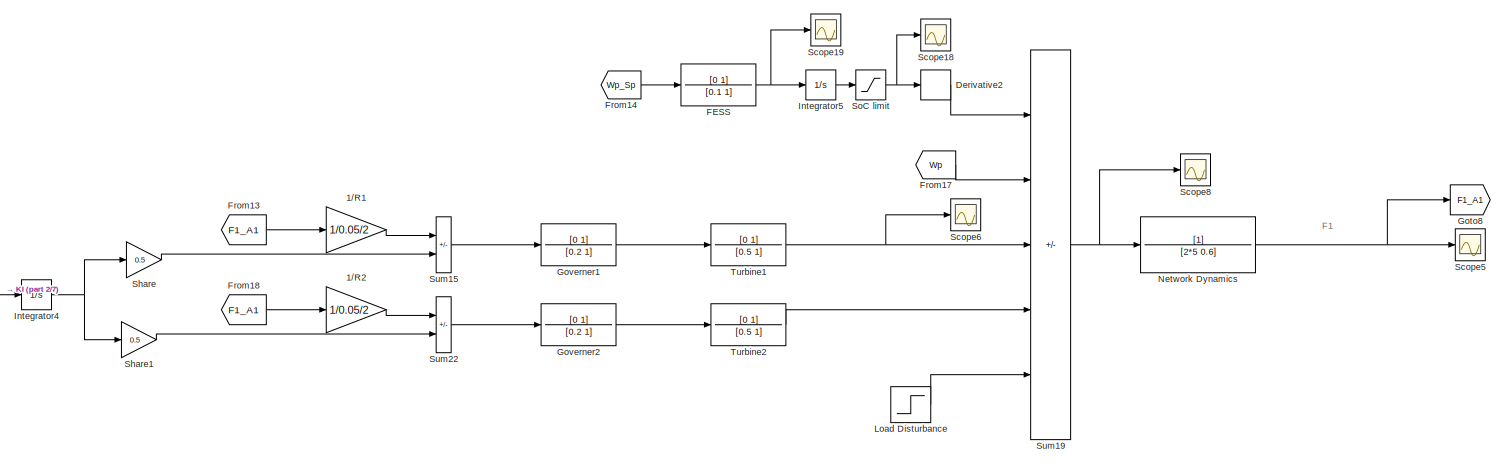
[diagram: root canvas - part 1/7, top center region]
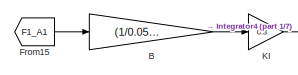
[diagram: root canvas - part 2/7, top left region]
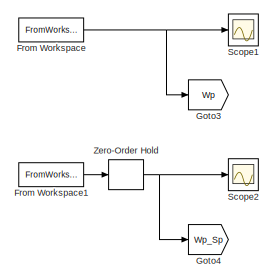
[diagram: root canvas - part 3/7, top left region]
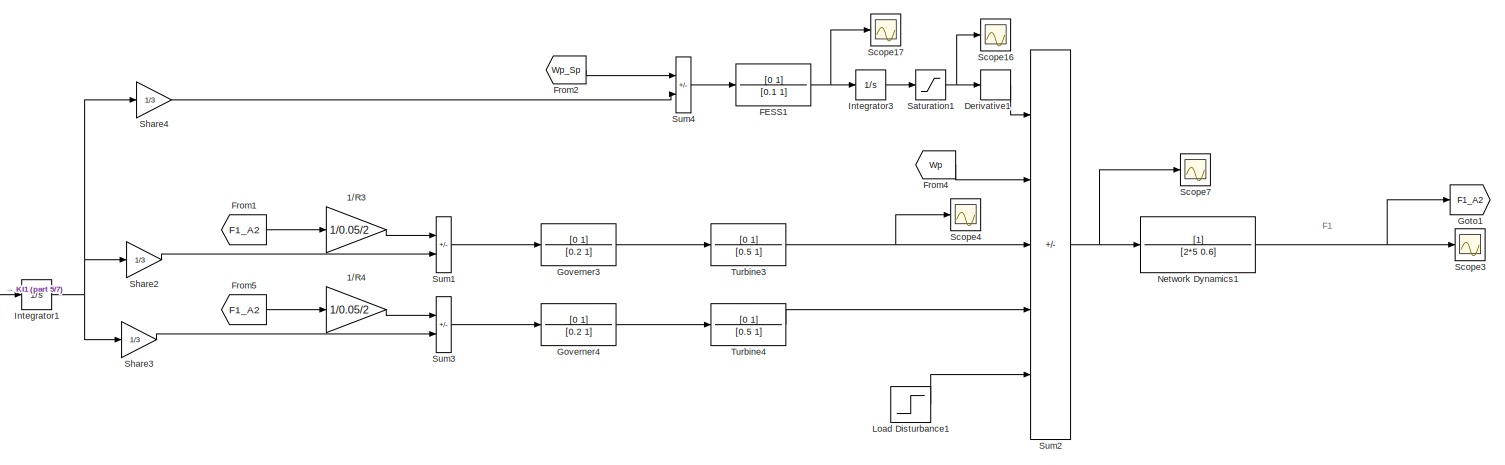
[diagram: root canvas - part 4/7, central region]
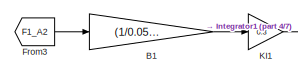
[diagram: root canvas - part 5/7, middle left region]
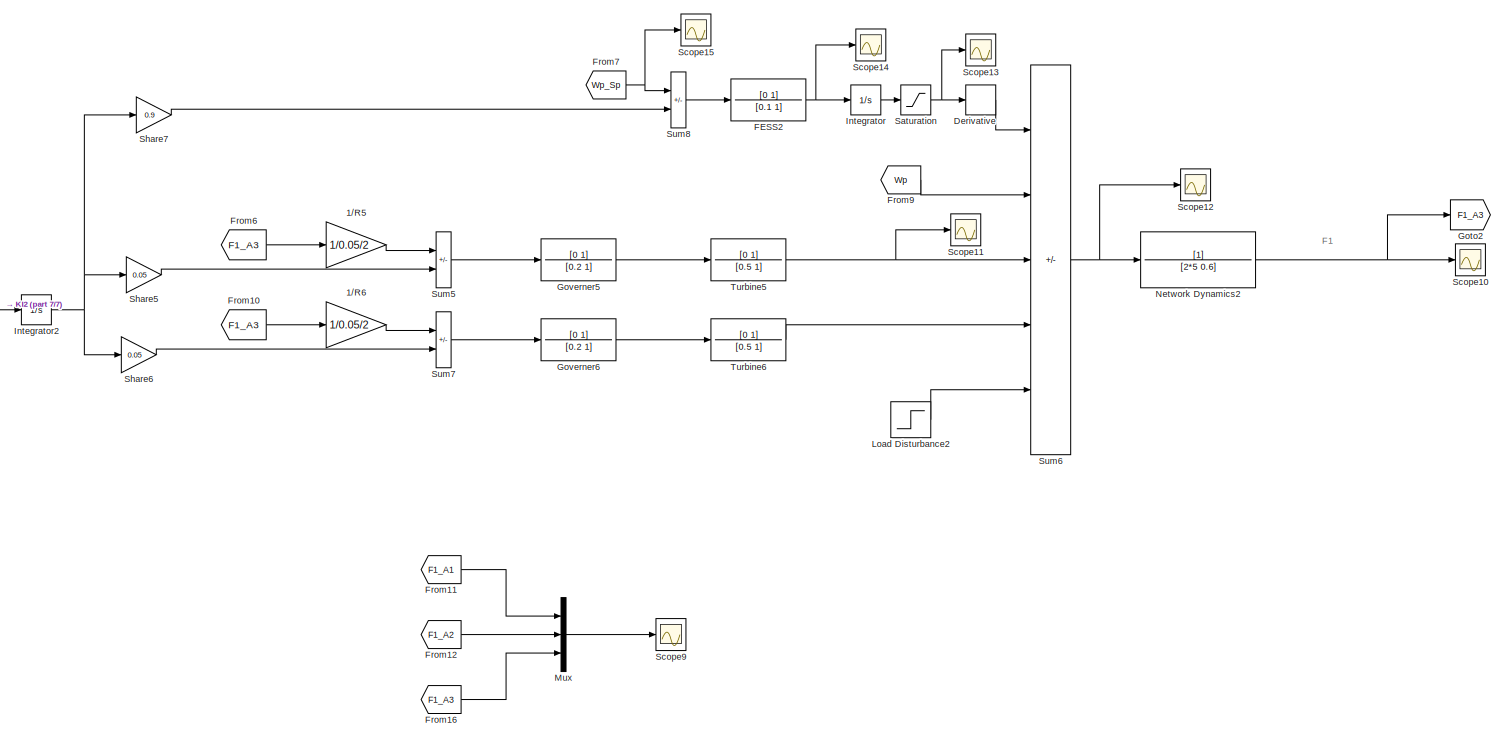
[diagram: root canvas - part 6/7, bottom center region]
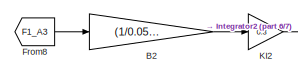
[diagram: root canvas - part 7/7, bottom left region]
MODEL slx_c4645bca6e1e
KIND model
CONFIG AbsTol = auto
CONFIG EnableMultiTasking = on
CONFIG FixedStep = .1
CONFIG MaxStep = auto
CONFIG MinStep = auto
CONFIG RelTol = 1e-3
CONFIG SampleTimeConstraint = Unconstrained
CONFIG SolverName = ode3
CONFIG StartTime = 0.0
CONFIG StopTime = 2000
BLOCK [Gain] 1//R1
  Gain = 1/0.05/2
  NameLocation = top
BLOCK [Gain] 1//R2
  Gain = 1/0.05/2
  NameLocation = top
BLOCK [Gain] 1//R3
  Gain = 1/0.05/2
  NameLocation = top
BLOCK [Gain] 1//R4
  Gain = 1/0.05/2
  NameLocation = top
BLOCK [Gain] 1//R5
  Gain = 1/0.05/2
  NameLocation = top
BLOCK [Gain] 1//R6
  Gain = 1/0.05/2
  NameLocation = top
BLOCK [Gain] B
  Gain = (1/0.05)+0.6
  NameLocation = top
BLOCK [Gain] B1
  Gain = (1/0.05)+0.6
  NameLocation = top
BLOCK [Gain] B2
  Gain = (1/0.05)+0.6
  NameLocation = top
BLOCK [Derivative] Derivative
BLOCK [Derivative] Derivative1
BLOCK [Derivative] Derivative2
BLOCK [TransferFcn] FESS
  Denominator = [0.1  1]
  NameLocation = top
  Numerator = [0 1]
BLOCK [TransferFcn] FESS1
  Denominator = [0.1  1]
  NameLocation = top
  Numerator = [0 1]
BLOCK [TransferFcn] FESS2
  Denominator = [0.1  1]
  NameLocation = top
  Numerator = [0 1]
BLOCK [FromWorkspace] From Workspace
  VariableName = WindProfile
BLOCK [FromWorkspace] From Workspace1
  Interpolate = off
  OutputAfterFinalValue = Holding final value
  SampleTime = -1
  VariableName = WindSetPoint
BLOCK [From] From1
  GotoTag = F1_A2
  TagVisibility = global
BLOCK [From] From10
  GotoTag = F1_A3
  TagVisibility = global
BLOCK [From] From11
  GotoTag = F1_A1
  TagVisibility = global
BLOCK [From] From12
  GotoTag = F1_A2
  TagVisibility = global
BLOCK [From] From13
  GotoTag = F1_A1
  TagVisibility = global
BLOCK [From] From14
  GotoTag = Wp_Sp
  TagVisibility = global
BLOCK [From] From15
  GotoTag = F1_A1
  TagVisibility = global
BLOCK [From] From16
  GotoTag = F1_A3
  TagVisibility = global
BLOCK [From] From17
  GotoTag = Wp
  TagVisibility = global
BLOCK [From] From18
  GotoTag = F1_A1
  TagVisibility = global
BLOCK [From] From2
  GotoTag = Wp_Sp
  TagVisibility = global
BLOCK [From] From3
  GotoTag = F1_A2
  TagVisibility = global
BLOCK [From] From4
  GotoTag = Wp
  TagVisibility = global
BLOCK [From] From5
  GotoTag = F1_A2
  TagVisibility = global
BLOCK [From] From6
  GotoTag = F1_A3
  TagVisibility = global
BLOCK [From] From7
  GotoTag = Wp_Sp
  TagVisibility = global
BLOCK [From] From8
  GotoTag = F1_A3
  TagVisibility = global
BLOCK [From] From9
  GotoTag = Wp
  TagVisibility = global
BLOCK [Goto] Goto1
  GotoTag = F1_A2
  TagVisibility = global
BLOCK [Goto] Goto2
  GotoTag = F1_A3
  TagVisibility = global
BLOCK [Goto] Goto3
  GotoTag = Wp
  TagVisibility = global
BLOCK [Goto] Goto4
  GotoTag = Wp_Sp
  TagVisibility = global
BLOCK [Goto] Goto8
  GotoTag = F1_A1
  TagVisibility = global
BLOCK [TransferFcn] Governer1
  Denominator = [0.2  1]
  NameLocation = top
  Numerator = [0 1]
BLOCK [TransferFcn] Governer2
  Denominator = [0.2  1]
  NameLocation = top
  Numerator = [0 1]
BLOCK [TransferFcn] Governer3
  Denominator = [0.2  1]
  NameLocation = top
  Numerator = [0 1]
BLOCK [TransferFcn] Governer4
  Denominator = [0.2  1]
  NameLocation = top
  Numerator = [0 1]
BLOCK [TransferFcn] Governer5
  Denominator = [0.2  1]
  NameLocation = top
  Numerator = [0 1]
BLOCK [TransferFcn] Governer6
  Denominator = [0.2  1]
  NameLocation = top
  Numerator = [0 1]
BLOCK [Integrator] Integrator
  InitialCondition = -9600/15/2
BLOCK [Integrator] Integrator1
BLOCK [Integrator] Integrator2
BLOCK [Integrator] Integrator3
  InitialCondition = -9600/15/2
BLOCK [Integrator] Integrator4
BLOCK [Integrator] Integrator5
  InitialCondition = -9600/10/2
BLOCK [Gain] KI
  Gain = 0.3
  NameLocation = top
BLOCK [Gain] KI1
  Gain = 0.3
  NameLocation = top
BLOCK [Gain] KI2
  Gain = 0.3
  NameLocation = top
BLOCK [Step] Load Disturbance
  Time = 20
BLOCK [Step] Load Disturbance1
  Time = 20
BLOCK [Step] Load Disturbance2
  Time = 20
BLOCK [Mux] Mux
  DisplayOption = bar
  Inputs = 3
BLOCK [TransferFcn] Network Dynamics
  Denominator = [2*5  0.6]
  NameLocation = top
BLOCK [TransferFcn] Network Dynamics1
  Denominator = [2*5  0.6]
  NameLocation = top
BLOCK [TransferFcn] Network Dynamics2
  Denominator = [2*5  0.6]
  NameLocation = top
BLOCK [Saturate] Saturation
  LowerLimit = -9600/15
  UpperLimit = 0
BLOCK [Saturate] Saturation1
  LowerLimit = -9600/15
  UpperLimit = 0
BLOCK [Scope] Scope1
  Floating = off
  NumInputPorts = 1
  ScopeSpecificationString = Simulink.scopes.TimeScopeBlockCfg('CurrentConfiguration', extmgr.ConfigurationSet(extmgr.Configuration('Core','General UI',true),extmgr.Configuration('Core','Source UI',true),extmgr.Configuration('Sources','WiredSimulink',true,'DataLoggingSaveFormat','Array','DataLoggingDecimation','1','DataLoggingDecimateData',true,'DataLoggingVariableName','ScopeData1'),extmgr.Configuration('Visuals','Time Domai...<+1776ch>
BLOCK [Scope] Scope10
  Floating = off
  NumInputPorts = 1
  ScopeSpecificationString = Simulink.scopes.TimeScopeBlockCfg('CurrentConfiguration', extmgr.ConfigurationSet(extmgr.Configuration('Core','General UI',true),extmgr.Configuration('Core','Source UI',true),extmgr.Configuration('Sources','WiredSimulink',true,'DataLoggingSaveFormat','Array','DataLoggingDecimation','1','DataLoggingDecimateData',true,'DataLoggingVariableName','ScopeData8'),extmgr.Configuration('Visuals','Time Domai...<+1687ch>
BLOCK [Scope] Scope11
  Floating = off
  NumInputPorts = 1
  ScopeSpecificationString = Simulink.scopes.TimeScopeBlockCfg('CurrentConfiguration', extmgr.ConfigurationSet(extmgr.Configuration('Core','General UI',true),extmgr.Configuration('Core','Source UI',true),extmgr.Configuration('Sources','WiredSimulink',true,'DataLoggingSaveFormat','Array','DataLoggingDecimation','1','DataLoggingDecimateData',true,'DataLoggingVariableName','ScopeData9'),extmgr.Configuration('Visuals','Time Domai...<+1678ch>
BLOCK [Scope] Scope12
  Floating = off
  NumInputPorts = 1
  ScopeSpecificationString = Simulink.scopes.TimeScopeBlockCfg('CurrentConfiguration', extmgr.ConfigurationSet(extmgr.Configuration('Core','General UI',true),extmgr.Configuration('Core','Source UI',true),extmgr.Configuration('Sources','WiredSimulink',true,'DataLoggingSaveFormat','Array','DataLoggingDecimation','1','DataLoggingDecimateData',true,'DataLoggingVariableName','ScopeData10'),extmgr.Configuration('Visuals','Time Doma...<+2287ch>
BLOCK [Scope] Scope13
  Floating = off
  NumInputPorts = 1
  ScopeSpecificationString = Simulink.scopes.TimeScopeBlockCfg('CurrentConfiguration', extmgr.ConfigurationSet(extmgr.Configuration('Core','General UI',true),extmgr.Configuration('Core','Source UI',true),extmgr.Configuration('Sources','WiredSimulink',true,'DataLoggingSaveFormat','Array','DataLoggingDecimation','1','DataLoggingDecimateData',true,'DataLoggingVariableName','ScopeData11'),extmgr.Configuration('Visuals','Time Doma...<+1697ch>
BLOCK [Scope] Scope14
  Floating = off
  NumInputPorts = 1
  ScopeSpecificationString = Simulink.scopes.TimeScopeBlockCfg('CurrentConfiguration', extmgr.ConfigurationSet(extmgr.Configuration('Core','General UI',true),extmgr.Configuration('Core','Source UI',true),extmgr.Configuration('Sources','WiredSimulink',true,'DataLoggingSaveFormat','Array','DataLoggingDecimation','1','DataLoggingDecimateData',true,'DataLoggingVariableName','ScopeData12'),extmgr.Configuration('Visuals','Time Doma...<+1710ch>
BLOCK [Scope] Scope15
  Floating = off
  NumInputPorts = 1
  ScopeSpecificationString = Simulink.scopes.TimeScopeBlockCfg('CurrentConfiguration', extmgr.ConfigurationSet(extmgr.Configuration('Core','General UI',true),extmgr.Configuration('Core','Source UI',true),extmgr.Configuration('Sources','WiredSimulink',true,'DataLoggingSaveFormat','Array','DataLoggingDecimation','1','DataLoggingDecimateData',true,'DataLoggingVariableName','ScopeData13'),extmgr.Configuration('Visuals','Time Doma...<+1696ch>
BLOCK [Scope] Scope16
  Floating = off
  NumInputPorts = 1
  ScopeSpecificationString = Simulink.scopes.TimeScopeBlockCfg('CurrentConfiguration', extmgr.ConfigurationSet(extmgr.Configuration('Core','General UI',true),extmgr.Configuration('Core','Source UI',true),extmgr.Configuration('Sources','WiredSimulink',true,'DataLoggingSaveFormat','Array','DataLoggingDecimation','1','DataLoggingDecimateData',true,'DataLoggingVariableName','ScopeData14'),extmgr.Configuration('Visuals','Time Doma...<+1698ch>
BLOCK [Scope] Scope17
  Floating = off
  NumInputPorts = 1
  ScopeSpecificationString = Simulink.scopes.TimeScopeBlockCfg('CurrentConfiguration', extmgr.ConfigurationSet(extmgr.Configuration('Core','General UI',true),extmgr.Configuration('Core','Source UI',true),extmgr.Configuration('Sources','WiredSimulink',true,'DataLoggingSaveFormat','Array','DataLoggingDecimation','1','DataLoggingDecimateData',true,'DataLoggingVariableName','ScopeData15'),extmgr.Configuration('Visuals','Time Doma...<+1710ch>
BLOCK [Scope] Scope18
  Floating = off
  NumInputPorts = 1
  ScopeSpecificationString = Simulink.scopes.TimeScopeBlockCfg('CurrentConfiguration', extmgr.ConfigurationSet(extmgr.Configuration('Core','General UI',true),extmgr.Configuration('Core','Source UI',true),extmgr.Configuration('Sources','WiredSimulink',true,'DataLoggingSaveFormat','Array','DataLoggingDecimation','1','DataLoggingDecimateData',true,'DataLoggingVariableName','ScopeData16'),extmgr.Configuration('Visuals','Time Doma...<+1790ch>
BLOCK [Scope] Scope19
  Floating = off
  NumInputPorts = 1
  ScopeSpecificationString = Simulink.scopes.TimeScopeBlockCfg('CurrentConfiguration', extmgr.ConfigurationSet(extmgr.Configuration('Core','General UI',true),extmgr.Configuration('Core','Source UI',true),extmgr.Configuration('Sources','WiredSimulink',true,'DataLoggingSaveFormat','Array','DataLoggingDecimation','1','DataLoggingDecimateData',true,'DataLoggingVariableName','ScopeData17'),extmgr.Configuration('Visuals','Time Doma...<+1769ch>
BLOCK [Scope] Scope2
  Floating = off
  NumInputPorts = 1
  ScopeSpecificationString = Simulink.scopes.TimeScopeBlockCfg('CurrentConfiguration', extmgr.ConfigurationSet(extmgr.Configuration('Core','General UI',true),extmgr.Configuration('Core','Source UI',true),extmgr.Configuration('Sources','WiredSimulink',true,'DataLoggingSaveFormat','Array','DataLoggingDecimation','1','DataLoggingDecimateData',true,'DataLoggingVariableName','ScopeData2'),extmgr.Configuration('Visuals','Time Domai...<+1787ch>
BLOCK [Scope] Scope3
  Floating = off
  NumInputPorts = 1
  ScopeSpecificationString = Simulink.scopes.TimeScopeBlockCfg('CurrentConfiguration', extmgr.ConfigurationSet(extmgr.Configuration('Core','General UI',true),extmgr.Configuration('Core','Source UI',true),extmgr.Configuration('Sources','WiredSimulink',true,'DataLoggingSaveFormat','Array','DataLoggingDecimation','1','DataLoggingDecimateData',true,'DataLoggingVariableName','ScopeData3'),extmgr.Configuration('Visuals','Time Domai...<+1781ch>
BLOCK [Scope] Scope4
  Floating = off
  NumInputPorts = 1
  ScopeSpecificationString = Simulink.scopes.TimeScopeBlockCfg('CurrentConfiguration', extmgr.ConfigurationSet(extmgr.Configuration('Core','General UI',true),extmgr.Configuration('Core','Source UI',true),extmgr.Configuration('Sources','WiredSimulink',true,'DataLoggingSaveFormat','Array','DataLoggingDecimation','1','DataLoggingDecimateData',true,'DataLoggingVariableName','ScopeData5'),extmgr.Configuration('Visuals','Time Domai...<+1678ch>
BLOCK [Scope] Scope5
  Floating = off
  NumInputPorts = 1
  ScopeSpecificationString = Simulink.scopes.TimeScopeBlockCfg('CurrentConfiguration', extmgr.ConfigurationSet(extmgr.Configuration('Core','General UI',true),extmgr.Configuration('Core','Source UI',true),extmgr.Configuration('Sources','WiredSimulink',true,'DataLoggingSaveFormat','Array','DataLoggingDecimation','1','DataLoggingDecimateData',true,'DataLoggingVariableName','ScopeData1'),extmgr.Configuration('Visuals','Time Domai...<+1788ch>
BLOCK [Scope] Scope6
  Floating = off
  NumInputPorts = 1
  ScopeSpecificationString = Simulink.scopes.TimeScopeBlockCfg('CurrentConfiguration', extmgr.ConfigurationSet(extmgr.Configuration('Core','General UI',true),extmgr.Configuration('Core','Source UI',true),extmgr.Configuration('Sources','WiredSimulink',true,'DataLoggingSaveFormat','Array','DataLoggingDecimation','1','DataLoggingDecimateData',true,'DataLoggingVariableName','ScopeData2'),extmgr.Configuration('Visuals','Time Domai...<+1678ch>
BLOCK [Scope] Scope7
  Floating = off
  NumInputPorts = 1
  ScopeSpecificationString = Simulink.scopes.TimeScopeBlockCfg('CurrentConfiguration', extmgr.ConfigurationSet(extmgr.Configuration('Core','General UI',true),extmgr.Configuration('Core','Source UI',true),extmgr.Configuration('Sources','WiredSimulink',true,'DataLoggingSaveFormat','Array','DataLoggingDecimation','1','DataLoggingDecimateData',true,'DataLoggingVariableName','ScopeData6'),extmgr.Configuration('Visuals','Time Domai...<+2286ch>
BLOCK [Scope] Scope8
  Floating = off
  NumInputPorts = 1
  ScopeSpecificationString = Simulink.scopes.TimeScopeBlockCfg('CurrentConfiguration', extmgr.ConfigurationSet(extmgr.Configuration('Core','General UI',true),extmgr.Configuration('Core','Source UI',true),extmgr.Configuration('Sources','WiredSimulink',true,'DataLoggingSaveFormat','Array','DataLoggingDecimation','1','DataLoggingDecimateData',true,'DataLoggingVariableName','ScopeData4'),extmgr.Configuration('Visuals','Time Domai...<+1769ch>
BLOCK [Scope] Scope9
  Floating = off
  NumInputPorts = 1
  ScopeSpecificationString = Simulink.scopes.TimeScopeBlockCfg('CurrentConfiguration', extmgr.ConfigurationSet(extmgr.Configuration('Core','General UI',true),extmgr.Configuration('Core','Source UI',true),extmgr.Configuration('Sources','WiredSimulink',true,'DataLoggingSaveFormat','Array','DataLoggingDecimation','1','DataLoggingDecimateData',true,'DataLoggingVariableName','ScopeData7'),extmgr.Configuration('Visuals','Time Domai...<+1820ch>
BLOCK [Gain] Share
  Gain = 0.5
  NameLocation = top
BLOCK [Gain] Share1
  Gain = 0.5
  NameLocation = top
BLOCK [Gain] Share2
  Gain = 1/3
  NameLocation = top
BLOCK [Gain] Share3
  Gain = 1/3
  NameLocation = top
BLOCK [Gain] Share4
  Gain = 1/3
  NameLocation = top
BLOCK [Gain] Share5
  Gain = 0.05
  NameLocation = top
BLOCK [Gain] Share6
  Gain = 0.05
  NameLocation = top
BLOCK [Gain] Share7
  Gain = 0.9
  NameLocation = top
BLOCK [Saturate] SoC limit
  LowerLimit = -9600/10
  UpperLimit = 0
BLOCK [Sum] Sum1
  IconShape = rectangular
  InputSameDT = on
  Inputs = --
  NameLocation = top
  OutDataTypeStr = Inherit: Same as first input
  SaturateOnIntegerOverflow = on
BLOCK [Sum] Sum15
  IconShape = rectangular
  InputSameDT = on
  Inputs = --
  NameLocation = top
  OutDataTypeStr = Inherit: Same as first input
  SaturateOnIntegerOverflow = on
BLOCK [Sum] Sum19
  IconShape = rectangular
  InputSameDT = on
  Inputs = ++++-
  NameLocation = top
  OutDataTypeStr = Inherit: Same as first input
  SaturateOnIntegerOverflow = on
BLOCK [Sum] Sum2
  IconShape = rectangular
  InputSameDT = on
  Inputs = ++++-
  NameLocation = top
  OutDataTypeStr = Inherit: Same as first input
  SaturateOnIntegerOverflow = on
BLOCK [Sum] Sum22
  IconShape = rectangular
  InputSameDT = on
  Inputs = --
  NameLocation = top
  OutDataTypeStr = Inherit: Same as first input
  SaturateOnIntegerOverflow = on
BLOCK [Sum] Sum3
  IconShape = rectangular
  InputSameDT = on
  Inputs = --
  NameLocation = top
  OutDataTypeStr = Inherit: Same as first input
  SaturateOnIntegerOverflow = on
BLOCK [Sum] Sum4
  IconShape = rectangular
  InputSameDT = on
  Inputs = +-
  NameLocation = top
  OutDataTypeStr = Inherit: Same as first input
  SaturateOnIntegerOverflow = on
BLOCK [Sum] Sum5
  IconShape = rectangular
  InputSameDT = on
  Inputs = --
  NameLocation = top
  OutDataTypeStr = Inherit: Same as first input
  SaturateOnIntegerOverflow = on
BLOCK [Sum] Sum6
  IconShape = rectangular
  InputSameDT = on
  Inputs = ++++-
  NameLocation = top
  OutDataTypeStr = Inherit: Same as first input
  SaturateOnIntegerOverflow = on
BLOCK [Sum] Sum7
  IconShape = rectangular
  InputSameDT = on
  Inputs = --
  NameLocation = top
  OutDataTypeStr = Inherit: Same as first input
  SaturateOnIntegerOverflow = on
BLOCK [Sum] Sum8
  IconShape = rectangular
  InputSameDT = on
  Inputs = +-
  NameLocation = top
  OutDataTypeStr = Inherit: Same as first input
  SaturateOnIntegerOverflow = on
BLOCK [TransferFcn] Turbine1
  Denominator = [0.5  1]
  NameLocation = top
  Numerator = [0 1]
BLOCK [TransferFcn] Turbine2
  Denominator = [0.5  1]
  NameLocation = top
  Numerator = [0 1]
BLOCK [TransferFcn] Turbine3
  Denominator = [0.5  1]
  NameLocation = top
  Numerator = [0 1]
BLOCK [TransferFcn] Turbine4
  Denominator = [0.5  1]
  NameLocation = top
  Numerator = [0 1]
BLOCK [TransferFcn] Turbine5
  Denominator = [0.5  1]
  NameLocation = top
  Numerator = [0 1]
BLOCK [TransferFcn] Turbine6
  Denominator = [0.5  1]
  NameLocation = top
  Numerator = [0 1]
BLOCK [ZeroOrderHold] Zero-Order Hold
  Commented = through
  SampleTime = .1
ANNOTATION (root): F1
LINE 1//R1:1 -> Sum15:1
LINE 1//R2:1 -> Sum22:1
LINE 1//R3:1 -> Sum1:1
LINE 1//R4:1 -> Sum3:1
LINE 1//R5:1 -> Sum5:1
LINE 1//R6:1 -> Sum7:1
LINE B1:1 -> KI1:1
LINE B2:1 -> KI2:1
LINE B:1 -> KI:1
LINE Derivative1:1 -> Sum2:1
LINE Derivative2:1 -> Sum19:1
LINE Derivative:1 -> Sum6:1
NET FESS1:1 -> Integrator3:1, Scope17:1
NET FESS2:1 -> Integrator:1, Scope14:1
NET FESS:1 -> Integrator5:1, Scope19:1
LINE From Workspace1:1 -> Zero-Order Hold:1
NET From Workspace:1 -> Goto3:1, Scope1:1
LINE From10:1 -> 1//R6:1
LINE From11:1 -> Mux:1
LINE From12:1 -> Mux:2
LINE From13:1 -> 1//R1:1
LINE From14:1 -> FESS:1
LINE From15:1 -> B:1
LINE From16:1 -> Mux:3
LINE From17:1 -> Sum19:2
LINE From18:1 -> 1//R2:1
LINE From1:1 -> 1//R3:1
LINE From2:1 -> Sum4:1
LINE From3:1 -> B1:1
LINE From4:1 -> Sum2:2
LINE From5:1 -> 1//R4:1
LINE From6:1 -> 1//R5:1
NET From7:1 -> Scope15:1, Sum8:1
LINE From8:1 -> B2:1
LINE From9:1 -> Sum6:2
LINE Governer1:1 -> Turbine1:1
LINE Governer2:1 -> Turbine2:1
LINE Governer3:1 -> Turbine3:1
LINE Governer4:1 -> Turbine4:1
LINE Governer5:1 -> Turbine5:1
LINE Governer6:1 -> Turbine6:1
NET Integrator1:1 -> Share2:1, Share3:1, Share4:1
NET Integrator2:1 -> Share5:1, Share6:1, Share7:1
LINE Integrator3:1 -> Saturation1:1
NET Integrator4:1 -> Share1:1, Share:1
LINE Integrator5:1 -> SoC limit:1
LINE Integrator:1 -> Saturation:1
LINE KI1:1 -> Integrator1:1
LINE KI2:1 -> Integrator2:1
LINE KI:1 -> Integrator4:1
LINE Load Disturbance1:1 -> Sum2:5
LINE Load Disturbance2:1 -> Sum6:5
LINE Load Disturbance:1 -> Sum19:5
LINE Mux:1 -> Scope9:1
NET Network Dynamics1:1 -> Goto1:1, Scope3:1
NET Network Dynamics2:1 -> Goto2:1, Scope10:1
NET Network Dynamics:1 -> Goto8:1, Scope5:1
NET Saturation1:1 -> Derivative1:1, Scope16:1
NET Saturation:1 -> Derivative:1, Scope13:1
LINE Share1:1 -> Sum22:2
LINE Share2:1 -> Sum1:2
LINE Share3:1 -> Sum3:2
LINE Share4:1 -> Sum4:2
LINE Share5:1 -> Sum5:2
LINE Share6:1 -> Sum7:2
LINE Share7:1 -> Sum8:2
LINE Share:1 -> Sum15:2
NET SoC limit:1 -> Derivative2:1, Scope18:1
LINE Sum15:1 -> Governer1:1
NET Sum19:1 -> Network Dynamics:1, Scope8:1
LINE Sum1:1 -> Governer3:1
LINE Sum22:1 -> Governer2:1
NET Sum2:1 -> Network Dynamics1:1, Scope7:1
LINE Sum3:1 -> Governer4:1
LINE Sum4:1 -> FESS1:1
LINE Sum5:1 -> Governer5:1
NET Sum6:1 -> Network Dynamics2:1, Scope12:1
LINE Sum7:1 -> Governer6:1
LINE Sum8:1 -> FESS2:1
NET Turbine1:1 -> Scope6:1, Sum19:3
LINE Turbine2:1 -> Sum19:4
NET Turbine3:1 -> Scope4:1, Sum2:3
LINE Turbine4:1 -> Sum2:4
NET Turbine5:1 -> Scope11:1, Sum6:3
LINE Turbine6:1 -> Sum6:4
NET Zero-Order Hold:1 -> Goto4:1, Scope2:1
note: NET lines group one-source signal fan-out (src -> all destinations, sorted); 1:1 wires keep LINE
